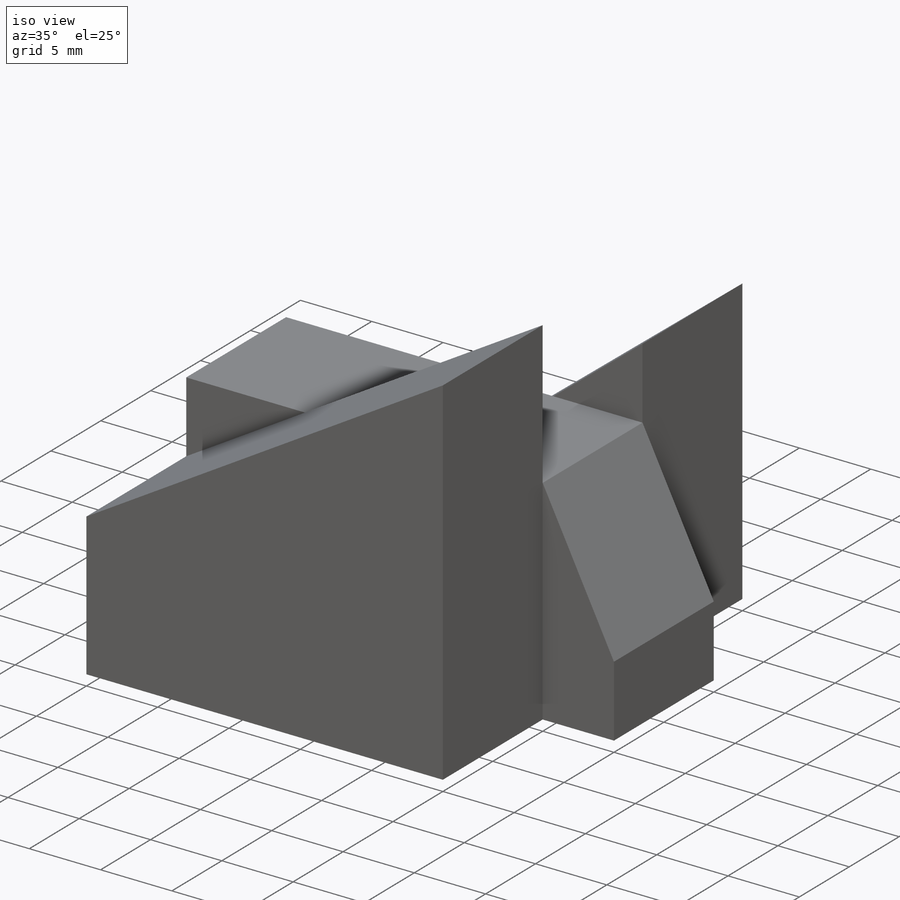
[diagram: iso view]
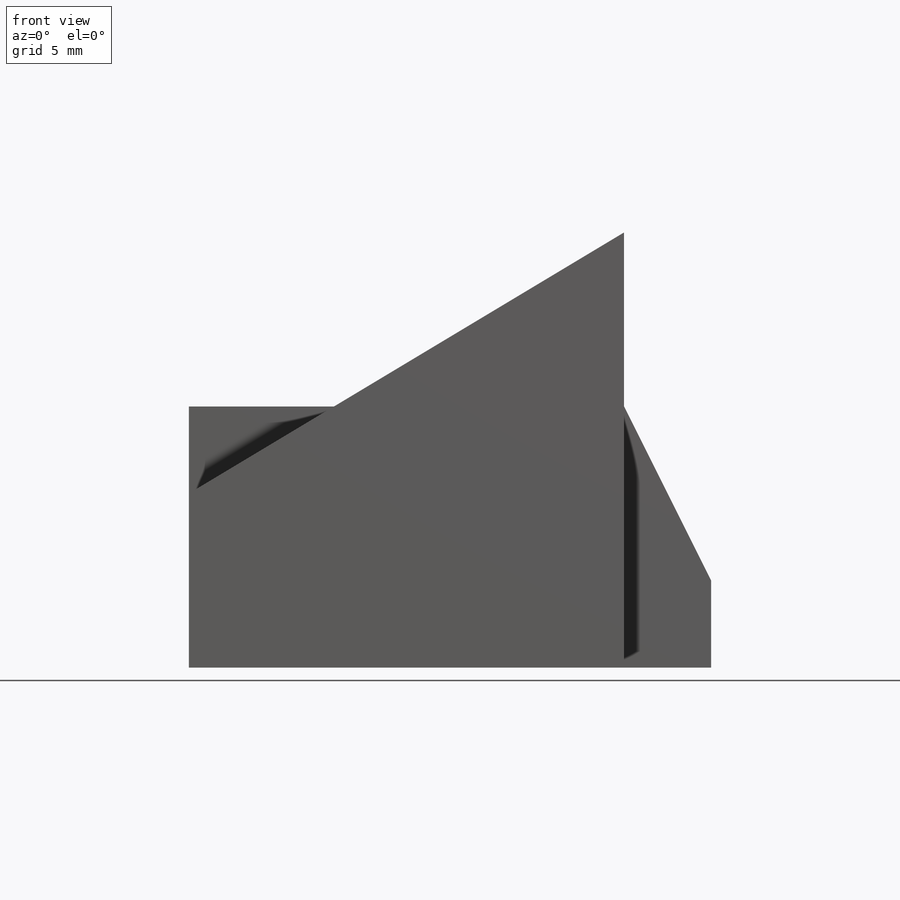
[diagram: front view]
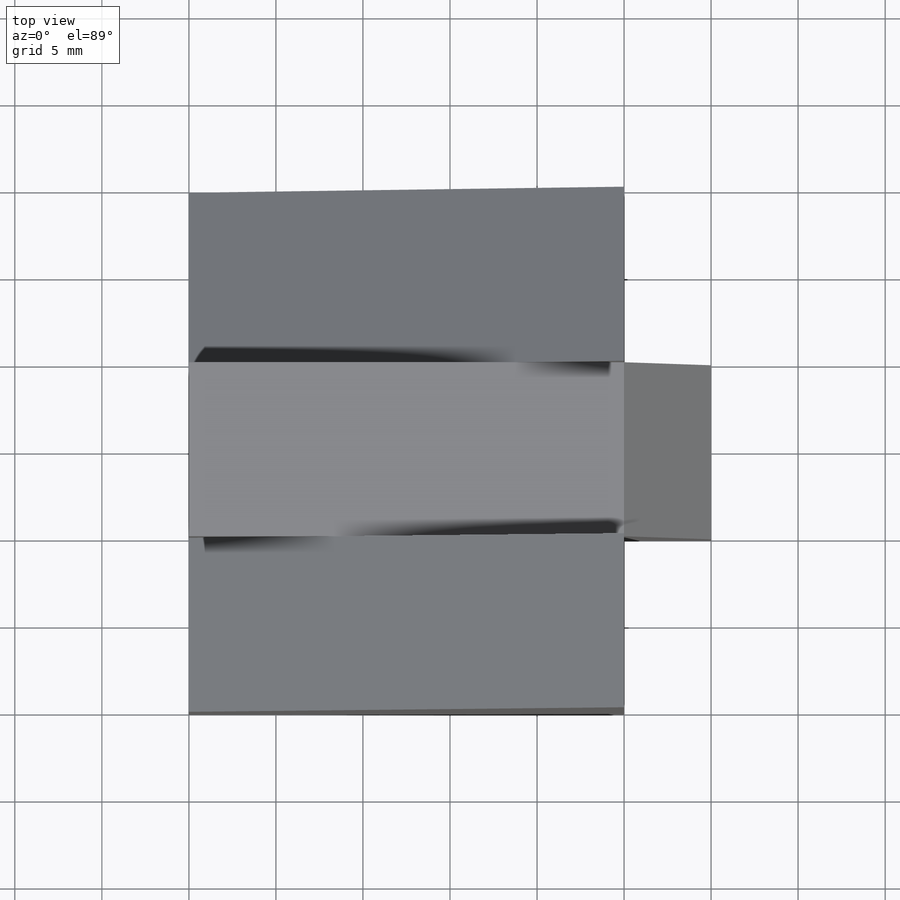
[diagram: top view]
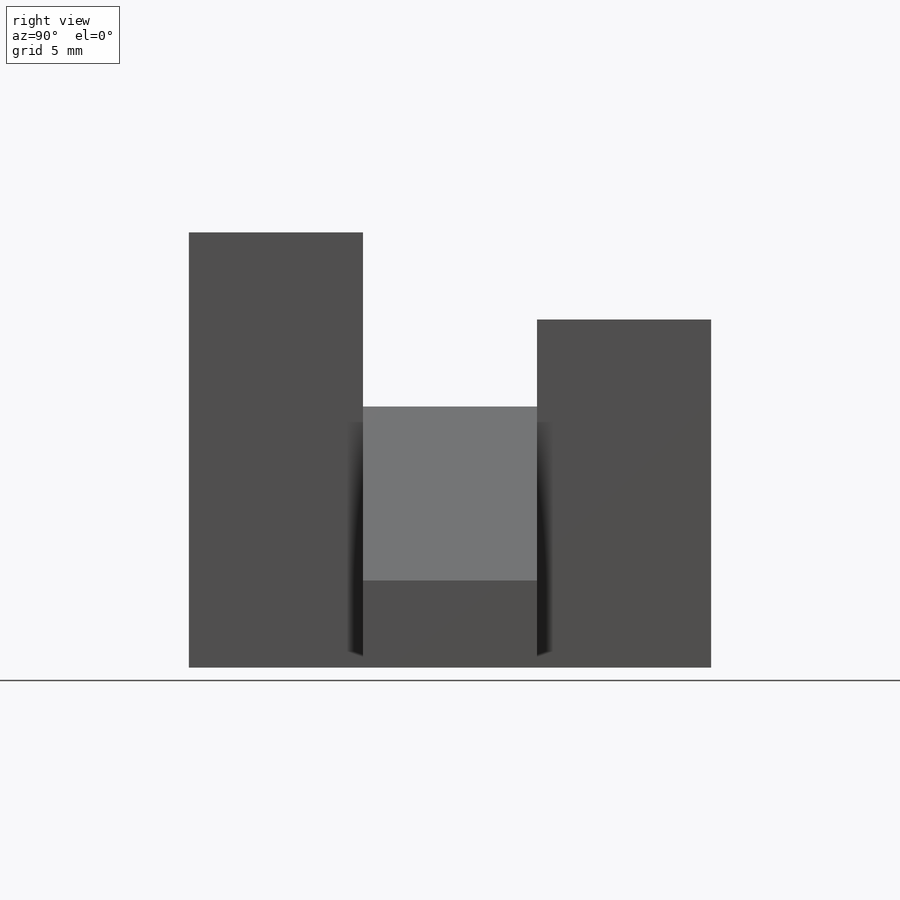
[diagram: right view]
SOLIDWORKS PART (.sldprt)
format: sldprt  version: not decoded by parser v0  size: 153,088 bytes
history: native  units: mm
features: sketch x4, extrude x4, material x1 (+13 scaffold rows collapsed)
feature tree (22):
  scaffold x13  (default folders/planes/origin — collapsed)
  material  "Material <not specified>"
  sketch  "Sketch1"  dims[D1=25.0mm D2=20.0mm]
  extrude  "Boss-Extrude9"  Depth=10mm
  sketch  "Sketch7"  dims[D1=15.0mm D2=25.0mm D3=30.0mm D4=5.0mm]
  extrude  "Boss-Extrude10"  Depth=10mm
  sketch  "Sketch8"  dims[D1=10.0mm D2=25.0mm]
  extrude  "Boss-Extrude11"  Depth=10mm
  sketch  "Sketch9"  dims[D1=15.0mm]
  extrude  "Boss-Extrude12"  Depth=10mm
decode coverage: 8 of 8 modeling features carry decoded parameters
note: suppression state not decoded; provenance and decode notes live in map.json
